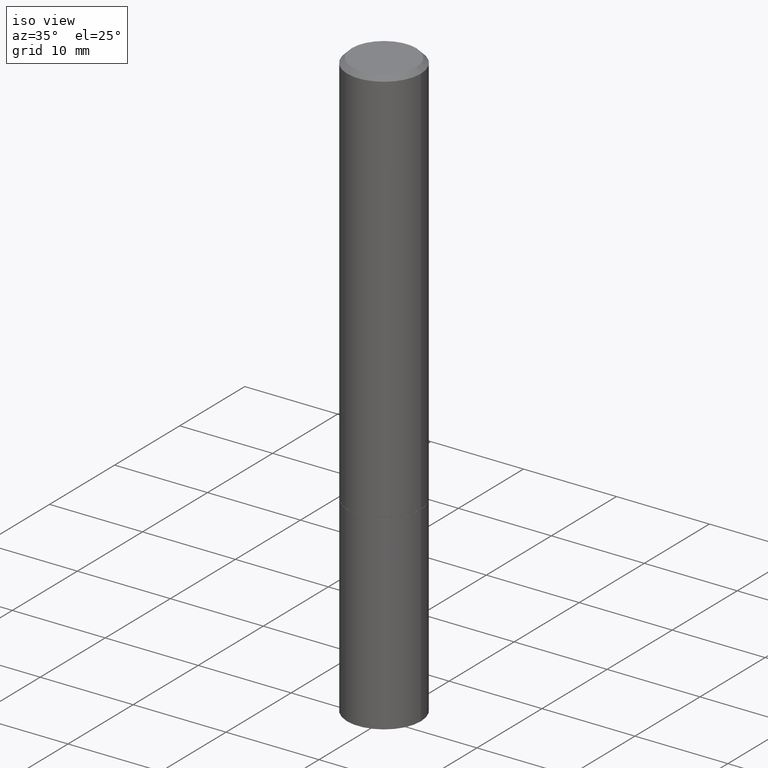
[diagram: clean part render]
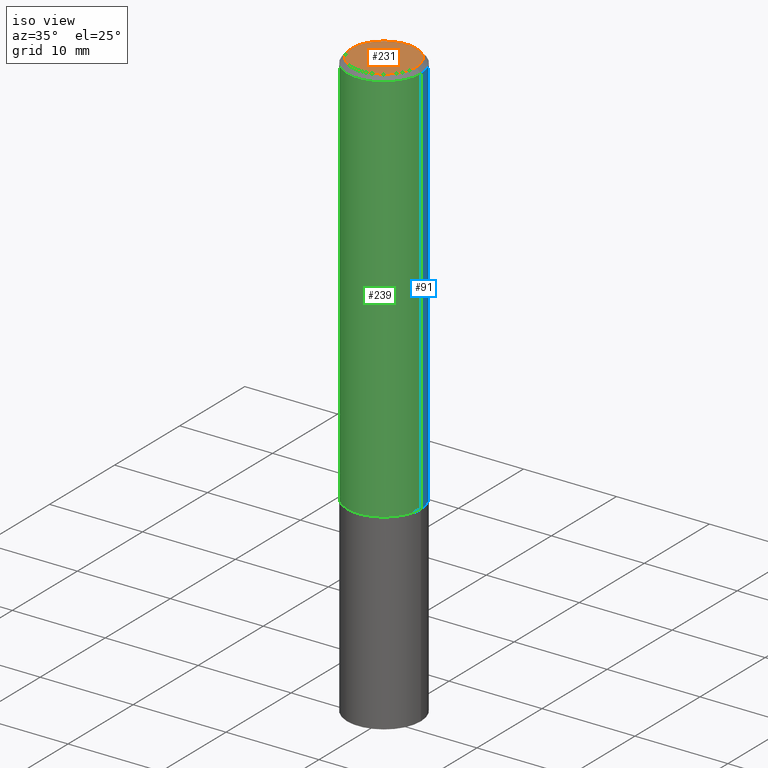
[diagram: same view with three faces highlighted in distinct colors, each labeled with its STEP entity id]
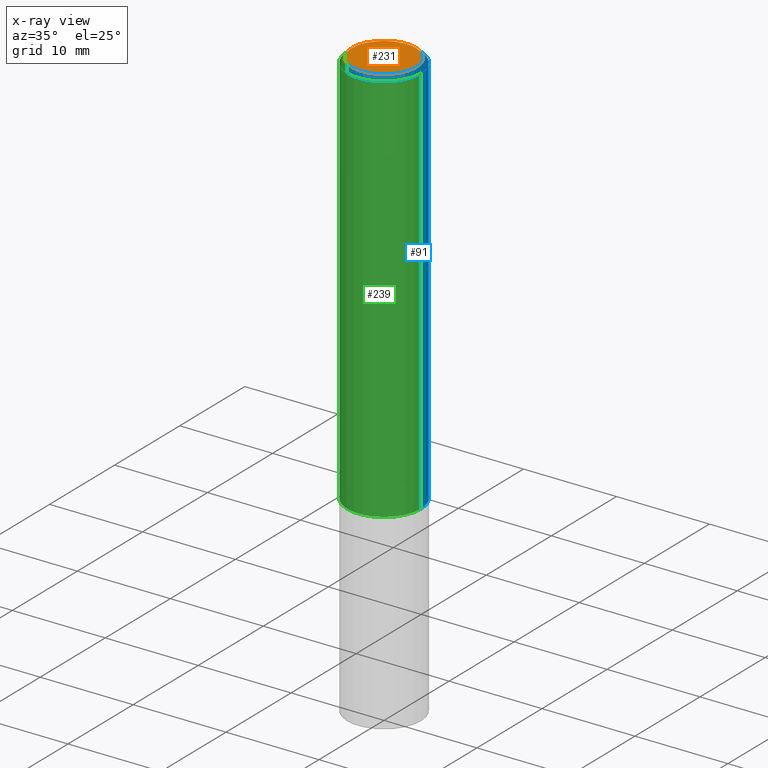
[diagram: x-ray of the same camera — body ghosted, the three highlighted faces saturated]
A machine part, iso view with three faces highlighted in distinct colors.
The next image is the same camera in x-ray (body ghosted, the three faces saturated) — at least one of them is partly hidden behind the body in this view.
Their STEP definitions:

[orange] entity #231 — the highlighted planar face has unit normal (0, -0, -1).
#10 = PLANE ( 'NONE',  #112 ) ;
#41 = DIRECTION ( 'NONE',  ( -1.000000000000000000, 6.982962677686265922E-15, -4.876176775795935793E-29 ) ) ;
#46 = VERTEX_POINT ( 'NONE', #360 ) ;
#47 = DIRECTION ( 'NONE',  ( 1.000000000000000000, -6.982962677686266711E-15, 4.876176775795935232E-29 ) ) ;
#52 = ORIENTED_EDGE ( 'NONE', *, *, #226, .T. ) ;
#60 = AXIS2_PLACEMENT_3D ( 'NONE', #63, #323, #47 ) ;
#63 = CARTESIAN_POINT ( 'NONE',  ( 0.000000000000000000, 0.000000000000000000, 0.000000000000000000 ) ) ;
#70 = CARTESIAN_POINT ( 'NONE',  ( 9.514286648347523799E-16, 0.1362499999999998157, -4.757143324173778663E-16 ) ) ;
#84 = EDGE_LOOP ( 'NONE', ( #215, #52 ) ) ;
#112 = AXIS2_PLACEMENT_3D ( 'NONE', #70, #206, #41 ) ;
#180 = FACE_OUTER_BOUND ( 'NONE', #84, .T. ) ;
#199 = VERTEX_POINT ( 'NONE', #241 ) ;
#205 = CIRCLE ( 'NONE', #280, 0.1362499999999998157 ) ;
#206 = DIRECTION ( 'NONE',  ( 2.438088387897960049E-29, -3.491481338843145188E-15, -1.000000000000000000 ) ) ;
#215 = ORIENTED_EDGE ( 'NONE', *, *, #309, .T. ) ;
#224 = CIRCLE ( 'NONE', #60, 0.1362499999999998157 ) ;
#226 = EDGE_CURVE ( 'NONE', #46, #199, #224, .T. ) ;
#231 = ADVANCED_FACE ( 'NONE', ( #180 ), #10, .F. ) ;
#234 = DIRECTION ( 'NONE',  ( 1.000000000000000000, -6.982962677686266711E-15, 4.876176775795935232E-29 ) ) ;
#238 = CARTESIAN_POINT ( 'NONE',  ( 0.000000000000000000, 0.000000000000000000, 0.000000000000000000 ) ) ;
#241 = CARTESIAN_POINT ( 'NONE',  ( -0.1362499999999998157, 9.863434782231836346E-16, -6.775751096333130074E-30 ) ) ;
#245 = DIRECTION ( 'NONE',  ( -2.445468806185136597E-29, 3.491481338843145583E-15, 1.000000000000000000 ) ) ;
#280 = AXIS2_PLACEMENT_3D ( 'NONE', #238, #245, #234 ) ;
#309 = EDGE_CURVE ( 'NONE', #199, #46, #205, .T. ) ;
#323 = DIRECTION ( 'NONE',  ( -2.445468806185136597E-29, 3.491481338843145583E-15, 1.000000000000000000 ) ) ;
#360 = CARTESIAN_POINT ( 'NONE',  ( 0.1362499999999998157, -1.038262645562516744E-15, 6.957025900226686667E-30 ) ) ;

[blue] entity #91 — the highlighted cylindrical surface (partial cylindrical patch) has radius 3.9687 mm, axis along (-0, 0, 1).
#4 = CARTESIAN_POINT ( 'NONE',  ( 0.000000000000000000, 0.000000000000000000, 0.000000000000000000 ) ) ;
#8 = FACE_OUTER_BOUND ( 'NONE', #115, .T. ) ;
#28 = VERTEX_POINT ( 'NONE', #351 ) ;
#34 = CYLINDRICAL_SURFACE ( 'NONE', #261, 0.1562499999999999167 ) ;
#57 = DIRECTION ( 'NONE',  ( 1.000000000000000000, -6.982962677686265133E-15, 4.876176775795935232E-29 ) ) ;
#61 = VERTEX_POINT ( 'NONE', #327 ) ;
#64 = EDGE_CURVE ( 'NONE', #281, #61, #186, .T. ) ;
#67 = DIRECTION ( 'NONE',  ( -2.445468806185136597E-29, 3.491481338843145583E-15, 1.000000000000000000 ) ) ;
#87 = ORIENTED_EDGE ( 'NONE', *, *, #263, .F. ) ;
#90 = CIRCLE ( 'NONE', #342, 0.1562500000000000000 ) ;
#91 = ADVANCED_FACE ( 'NONE', ( #8 ), #34, .T. ) ;
#102 = CARTESIAN_POINT ( 'NONE',  ( -0.1562499999999999167, 1.110223024625155949E-15, -7.685836078523285555E-30 ) ) ;
#110 = VERTEX_POINT ( 'NONE', #260 ) ;
#115 = EDGE_LOOP ( 'NONE', ( #210, #193, #87, #220 ) ) ;
#129 = DIRECTION ( 'NONE',  ( -2.445468806185136877E-29, 3.491481338843145188E-15, 1.000000000000000000 ) ) ;
#151 = DIRECTION ( 'NONE',  ( 1.000000000000000000, -6.982962677686265133E-15, 0.000000000000000000 ) ) ;
#158 = CIRCLE ( 'NONE', #230, 0.1562499999999998057 ) ;
#179 = DIRECTION ( 'NONE',  ( -2.445468806185136877E-29, 3.491481338843145188E-15, 1.000000000000000000 ) ) ;
#186 = LINE ( 'NONE', #102, #358 ) ;
#193 = ORIENTED_EDGE ( 'NONE', *, *, #64, .T. ) ;
#210 = ORIENTED_EDGE ( 'NONE', *, *, #333, .T. ) ;
#217 = CARTESIAN_POINT ( 'NONE',  ( 4.125505876034325766E-29, -5.890129018628387333E-15, -1.687000000000000055 ) ) ;
#220 = ORIENTED_EDGE ( 'NONE', *, *, #304, .F. ) ;
#230 = AXIS2_PLACEMENT_3D ( 'NONE', #353, #316, #151 ) ;
#232 = CARTESIAN_POINT ( 'NONE',  ( -0.1562500000000000000, -1.869756298077466803E-15, -1.687000000000000055 ) ) ;
#256 = DIRECTION ( 'NONE',  ( -2.445468806185136597E-29, 3.491481338843145583E-15, 1.000000000000000000 ) ) ;
#260 = CARTESIAN_POINT ( 'NONE',  ( 0.1562499999999998057, -1.141782438928663330E-15, -0.02000000000000003511 ) ) ;
#261 = AXIS2_PLACEMENT_3D ( 'NONE', #4, #256, #57 ) ;
#263 = EDGE_CURVE ( 'NONE', #110, #61, #158, .T. ) ;
#281 = VERTEX_POINT ( 'NONE', #232 ) ;
#295 = DIRECTION ( 'NONE',  ( 1.000000000000000000, -6.982962677686269077E-15, 0.000000000000000000 ) ) ;
#298 = CARTESIAN_POINT ( 'NONE',  ( 0.1562499999999999167, -1.091087918388478385E-15, 7.619026212181144772E-30 ) ) ;
#304 = EDGE_CURVE ( 'NONE', #28, #110, #320, .T. ) ;
#316 = DIRECTION ( 'NONE',  ( -2.445468806185136597E-29, 3.491481338843145583E-15, 1.000000000000000000 ) ) ;
#320 = LINE ( 'NONE', #298, #359 ) ;
#327 = CARTESIAN_POINT ( 'NONE',  ( -0.1562499999999998057, 1.021258291611614692E-15, -0.02000000000000003511 ) ) ;
#333 = EDGE_CURVE ( 'NONE', #28, #281, #90, .T. ) ;
#342 = AXIS2_PLACEMENT_3D ( 'NONE', #217, #67, #295 ) ;
#351 = CARTESIAN_POINT ( 'NONE',  ( 0.1562500000000000000, -6.981216937016866506E-15, -1.687000000000000055 ) ) ;
#353 = CARTESIAN_POINT ( 'NONE',  ( 4.890937612370281041E-31, -6.982962677686302702E-17, -0.02000000000000003511 ) ) ;
#358 = VECTOR ( 'NONE', #179, 39.37007874015748143 ) ;
#359 = VECTOR ( 'NONE', #129, 39.37007874015748143 ) ;

[green] entity #239 — the highlighted cylindrical surface (partial cylindrical patch) has radius 3.9687 mm, axis along (-0, 0, 1).
#3 = ORIENTED_EDGE ( 'NONE', *, *, #32, .F. ) ;
#9 = DIRECTION ( 'NONE',  ( 1.000000000000000000, -6.982962677686269077E-15, 0.000000000000000000 ) ) ;
#23 = EDGE_LOOP ( 'NONE', ( #354, #132, #254, #3 ) ) ;
#28 = VERTEX_POINT ( 'NONE', #351 ) ;
#31 = AXIS2_PLACEMENT_3D ( 'NONE', #150, #265, #9 ) ;
#32 = EDGE_CURVE ( 'NONE', #61, #110, #235, .T. ) ;
#36 = AXIS2_PLACEMENT_3D ( 'NONE', #237, #97, #214 ) ;
#39 = DIRECTION ( 'NONE',  ( 1.000000000000000000, -6.982962677686265133E-15, 4.876176775795935232E-29 ) ) ;
#61 = VERTEX_POINT ( 'NONE', #327 ) ;
#64 = EDGE_CURVE ( 'NONE', #281, #61, #186, .T. ) ;
#71 = CIRCLE ( 'NONE', #31, 0.1562500000000000000 ) ;
#92 = CYLINDRICAL_SURFACE ( 'NONE', #313, 0.1562499999999999167 ) ;
#97 = DIRECTION ( 'NONE',  ( -2.445468806185136597E-29, 3.491481338843145583E-15, 1.000000000000000000 ) ) ;
#102 = CARTESIAN_POINT ( 'NONE',  ( -0.1562499999999999167, 1.110223024625155949E-15, -7.685836078523285555E-30 ) ) ;
#110 = VERTEX_POINT ( 'NONE', #260 ) ;
#122 = DIRECTION ( 'NONE',  ( -2.445468806185136597E-29, 3.491481338843145583E-15, 1.000000000000000000 ) ) ;
#129 = DIRECTION ( 'NONE',  ( -2.445468806185136877E-29, 3.491481338843145188E-15, 1.000000000000000000 ) ) ;
#132 = ORIENTED_EDGE ( 'NONE', *, *, #300, .T. ) ;
#150 = CARTESIAN_POINT ( 'NONE',  ( 4.125505876034325766E-29, -5.890129018628387333E-15, -1.687000000000000055 ) ) ;
#155 = FACE_OUTER_BOUND ( 'NONE', #23, .T. ) ;
#179 = DIRECTION ( 'NONE',  ( -2.445468806185136877E-29, 3.491481338843145188E-15, 1.000000000000000000 ) ) ;
#186 = LINE ( 'NONE', #102, #358 ) ;
#214 = DIRECTION ( 'NONE',  ( 1.000000000000000000, -6.982962677686265133E-15, 0.000000000000000000 ) ) ;
#232 = CARTESIAN_POINT ( 'NONE',  ( -0.1562500000000000000, -1.869756298077466803E-15, -1.687000000000000055 ) ) ;
#235 = CIRCLE ( 'NONE', #36, 0.1562499999999998057 ) ;
#237 = CARTESIAN_POINT ( 'NONE',  ( 4.890937612370281041E-31, -6.982962677686302702E-17, -0.02000000000000003511 ) ) ;
#239 = ADVANCED_FACE ( 'NONE', ( #155 ), #92, .T. ) ;
#254 = ORIENTED_EDGE ( 'NONE', *, *, #304, .T. ) ;
#260 = CARTESIAN_POINT ( 'NONE',  ( 0.1562499999999998057, -1.141782438928663330E-15, -0.02000000000000003511 ) ) ;
#265 = DIRECTION ( 'NONE',  ( -2.445468806185136597E-29, 3.491481338843145583E-15, 1.000000000000000000 ) ) ;
#281 = VERTEX_POINT ( 'NONE', #232 ) ;
#298 = CARTESIAN_POINT ( 'NONE',  ( 0.1562499999999999167, -1.091087918388478385E-15, 7.619026212181144772E-30 ) ) ;
#300 = EDGE_CURVE ( 'NONE', #281, #28, #71, .T. ) ;
#304 = EDGE_CURVE ( 'NONE', #28, #110, #320, .T. ) ;
#313 = AXIS2_PLACEMENT_3D ( 'NONE', #357, #122, #39 ) ;
#320 = LINE ( 'NONE', #298, #359 ) ;
#327 = CARTESIAN_POINT ( 'NONE',  ( -0.1562499999999998057, 1.021258291611614692E-15, -0.02000000000000003511 ) ) ;
#351 = CARTESIAN_POINT ( 'NONE',  ( 0.1562500000000000000, -6.981216937016866506E-15, -1.687000000000000055 ) ) ;
#354 = ORIENTED_EDGE ( 'NONE', *, *, #64, .F. ) ;
#357 = CARTESIAN_POINT ( 'NONE',  ( 0.000000000000000000, 0.000000000000000000, 0.000000000000000000 ) ) ;
#358 = VECTOR ( 'NONE', #179, 39.37007874015748143 ) ;
#359 = VECTOR ( 'NONE', #129, 39.37007874015748143 ) ;